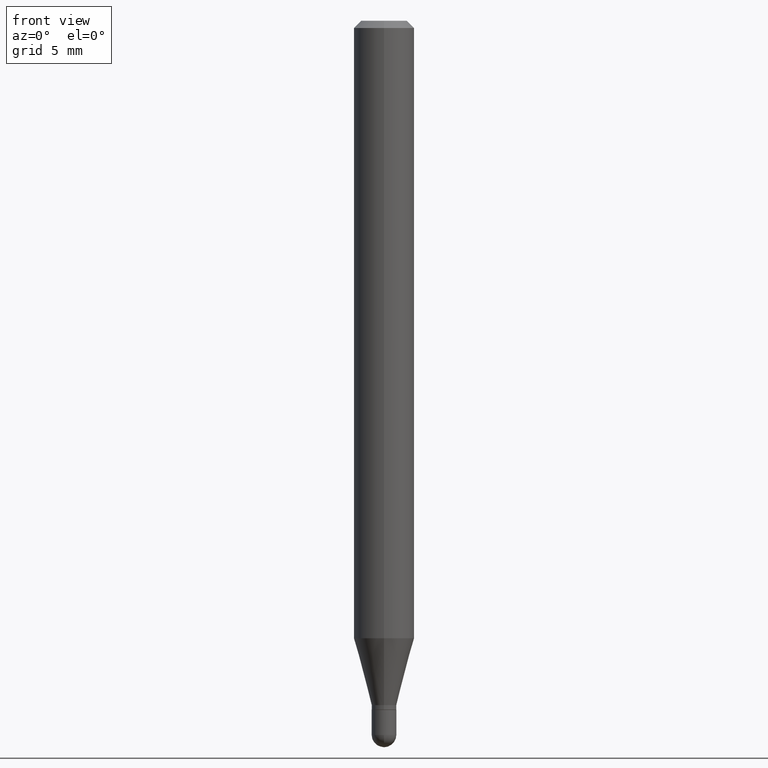
[diagram: clean part render]
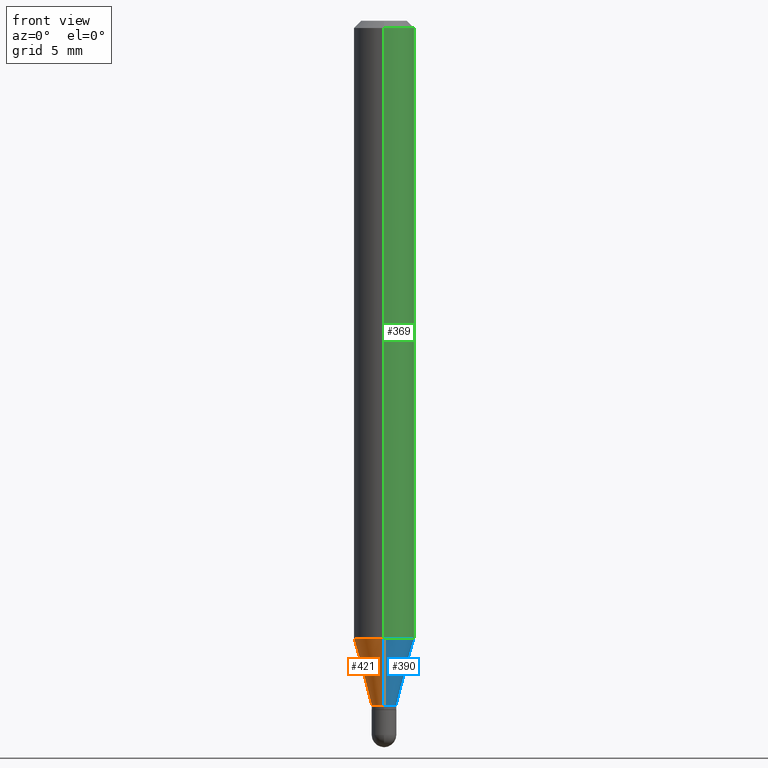
[diagram: same view with three faces highlighted in distinct colors, each labeled with its STEP entity id]
A machine part, front view with three faces highlighted in distinct colors.
Their STEP definitions:

[orange] entity #421 — the highlighted conical surface has half-angle 15 deg.
#6 = FACE_OUTER_BOUND ( 'NONE', #74, .T. ) ;
#9 = DIRECTION ( 'NONE',  ( 1.839019923739603865E-15, 0.2588190451025254579, 0.9659258262890669799 ) ) ;
#28 = AXIS2_PLACEMENT_3D ( 'NONE', #385, #319, #425 ) ;
#40 = VERTEX_POINT ( 'NONE', #435 ) ;
#43 = EDGE_CURVE ( 'NONE', #40, #470, #343, .T. ) ;
#60 = CARTESIAN_POINT ( 'NONE',  ( -1.780655482809647185E-16, -0.02550000000000486253, -1.413000000000000256 ) ) ;
#74 = EDGE_LOOP ( 'NONE', ( #303, #376, #442, #509 ) ) ;
#84 = LINE ( 'NONE', #314, #267 ) ;
#85 = DIRECTION ( 'NONE',  ( -2.445462518212453604E-29, 3.491490343577917092E-15, 1.000000000000000000 ) ) ;
#97 = LINE ( 'NONE', #60, #142 ) ;
#142 = VECTOR ( 'NONE', #250, 39.37007874015748854 ) ;
#152 = VERTEX_POINT ( 'NONE', #443 ) ;
#154 = AXIS2_PLACEMENT_3D ( 'NONE', #434, #85, #242 ) ;
#156 = EDGE_CURVE ( 'NONE', #152, #470, #97, .T. ) ;
#167 = CARTESIAN_POINT ( 'NONE',  ( 3.455438538234196718E-29, -4.933475855475596949E-15, -1.413000000000000256 ) ) ;
#173 = AXIS2_PLACEMENT_3D ( 'NONE', #167, #482, #282 ) ;
#204 = EDGE_CURVE ( 'NONE', #419, #40, #84, .T. ) ;
#207 = EDGE_CURVE ( 'NONE', #419, #152, #331, .T. ) ;
#242 = DIRECTION ( 'NONE',  ( -6.982962677686266711E-15, -1.000000000000000000, 0.000000000000000000 ) ) ;
#247 = CARTESIAN_POINT ( 'NONE',  ( 3.126388037344767028E-16, 0.02549999999999499195, -1.413000000000000256 ) ) ;
#250 = DIRECTION ( 'NONE',  ( -1.807323732225333689E-15, -0.2588190451025186856, 0.9659258262890687563 ) ) ;
#262 = CONICAL_SURFACE ( 'NONE', #154, 0.02549999999999992550, 0.2617993877991508511 ) ;
#267 = VECTOR ( 'NONE', #9, 39.37007874015748854 ) ;
#282 = DIRECTION ( 'NONE',  ( -6.982962677686266711E-15, -1.000000000000000000, 0.000000000000000000 ) ) ;
#303 = ORIENTED_EDGE ( 'NONE', *, *, #204, .F. ) ;
#314 = CARTESIAN_POINT ( 'NONE',  ( 1.811883976188595554E-16, 0.02549999999999499195, -1.413000000000000256 ) ) ;
#319 = DIRECTION ( 'NONE',  ( -2.445462518212453604E-29, 3.491490343577917092E-15, 1.000000000000000000 ) ) ;
#331 = CIRCLE ( 'NONE', #173, 0.02549999999999992550 ) ;
#343 = CIRCLE ( 'NONE', #28, 0.06250000000000000000 ) ;
#376 = ORIENTED_EDGE ( 'NONE', *, *, #207, .T. ) ;
#377 = CARTESIAN_POINT ( 'NONE',  ( -4.364351673553606080E-16, -0.06250000000000446865, -1.274914120119952088 ) ) ;
#385 = CARTESIAN_POINT ( 'NONE',  ( 3.117754694693152859E-29, -4.451350339289950225E-15, -1.274914120119952310 ) ) ;
#419 = VERTEX_POINT ( 'NONE', #247 ) ;
#421 = ADVANCED_FACE ( 'NONE', ( #6 ), #262, .T. ) ;
#425 = DIRECTION ( 'NONE',  ( -6.982962677686265922E-15, -1.000000000000000000, 4.370956789862821150E-15 ) ) ;
#434 = CARTESIAN_POINT ( 'NONE',  ( 3.455438538234196718E-29, -4.933475855475596949E-15, -1.413000000000000256 ) ) ;
#435 = CARTESIAN_POINT ( 'NONE',  ( 4.440892098500934804E-16, 0.06249999999999551747, -1.274914120119952532 ) ) ;
#442 = ORIENTED_EDGE ( 'NONE', *, *, #156, .T. ) ;
#443 = CARTESIAN_POINT ( 'NONE',  ( -1.780655482809647185E-16, -0.02550000000000486253, -1.413000000000000256 ) ) ;
#470 = VERTEX_POINT ( 'NONE', #377 ) ;
#482 = DIRECTION ( 'NONE',  ( -2.445462518212453604E-29, 3.491490343577917092E-15, 1.000000000000000000 ) ) ;
#509 = ORIENTED_EDGE ( 'NONE', *, *, #43, .F. ) ;

[blue] entity #390 — the highlighted conical surface has half-angle 15 deg.
#9 = DIRECTION ( 'NONE',  ( 1.839019923739603865E-15, 0.2588190451025254579, 0.9659258262890669799 ) ) ;
#13 = DIRECTION ( 'NONE',  ( -2.445462518212453604E-29, 3.491490343577917092E-15, 1.000000000000000000 ) ) ;
#40 = VERTEX_POINT ( 'NONE', #435 ) ;
#53 = AXIS2_PLACEMENT_3D ( 'NONE', #399, #404, #363 ) ;
#60 = CARTESIAN_POINT ( 'NONE',  ( -1.780655482809647185E-16, -0.02550000000000486253, -1.413000000000000256 ) ) ;
#77 = CONICAL_SURFACE ( 'NONE', #53, 0.02549999999999992550, 0.2617993877991508511 ) ;
#84 = LINE ( 'NONE', #314, #267 ) ;
#90 = CIRCLE ( 'NONE', #423, 0.06250000000000000000 ) ;
#97 = LINE ( 'NONE', #60, #142 ) ;
#113 = ORIENTED_EDGE ( 'NONE', *, *, #398, .F. ) ;
#116 = ORIENTED_EDGE ( 'NONE', *, *, #507, .T. ) ;
#136 = FACE_OUTER_BOUND ( 'NONE', #329, .T. ) ;
#142 = VECTOR ( 'NONE', #250, 39.37007874015748854 ) ;
#147 = ORIENTED_EDGE ( 'NONE', *, *, #156, .F. ) ;
#152 = VERTEX_POINT ( 'NONE', #443 ) ;
#156 = EDGE_CURVE ( 'NONE', #152, #470, #97, .T. ) ;
#164 = DIRECTION ( 'NONE',  ( -6.982962677686266711E-15, -1.000000000000000000, 0.000000000000000000 ) ) ;
#175 = CARTESIAN_POINT ( 'NONE',  ( 3.455438538234196718E-29, -4.933475855475596949E-15, -1.413000000000000256 ) ) ;
#204 = EDGE_CURVE ( 'NONE', #419, #40, #84, .T. ) ;
#215 = CIRCLE ( 'NONE', #440, 0.02549999999999992550 ) ;
#222 = DIRECTION ( 'NONE',  ( -2.445462518212453604E-29, 3.491490343577917092E-15, 1.000000000000000000 ) ) ;
#247 = CARTESIAN_POINT ( 'NONE',  ( 3.126388037344767028E-16, 0.02549999999999499195, -1.413000000000000256 ) ) ;
#250 = DIRECTION ( 'NONE',  ( -1.807323732225333689E-15, -0.2588190451025186856, 0.9659258262890687563 ) ) ;
#267 = VECTOR ( 'NONE', #9, 39.37007874015748854 ) ;
#314 = CARTESIAN_POINT ( 'NONE',  ( 1.811883976188595554E-16, 0.02549999999999499195, -1.413000000000000256 ) ) ;
#326 = CARTESIAN_POINT ( 'NONE',  ( 3.117754694693152859E-29, -4.451350339289950225E-15, -1.274914120119952310 ) ) ;
#329 = EDGE_LOOP ( 'NONE', ( #116, #341, #113, #147 ) ) ;
#341 = ORIENTED_EDGE ( 'NONE', *, *, #204, .T. ) ;
#363 = DIRECTION ( 'NONE',  ( -6.982962677686266711E-15, -1.000000000000000000, 0.000000000000000000 ) ) ;
#377 = CARTESIAN_POINT ( 'NONE',  ( -4.364351673553606080E-16, -0.06250000000000446865, -1.274914120119952088 ) ) ;
#390 = ADVANCED_FACE ( 'NONE', ( #136 ), #77, .T. ) ;
#398 = EDGE_CURVE ( 'NONE', #470, #40, #90, .T. ) ;
#399 = CARTESIAN_POINT ( 'NONE',  ( 3.455438538234196718E-29, -4.933475855475596949E-15, -1.413000000000000256 ) ) ;
#404 = DIRECTION ( 'NONE',  ( -2.445462518212453604E-29, 3.491490343577917092E-15, 1.000000000000000000 ) ) ;
#419 = VERTEX_POINT ( 'NONE', #247 ) ;
#423 = AXIS2_PLACEMENT_3D ( 'NONE', #326, #13, #490 ) ;
#435 = CARTESIAN_POINT ( 'NONE',  ( 4.440892098500934804E-16, 0.06249999999999551747, -1.274914120119952532 ) ) ;
#440 = AXIS2_PLACEMENT_3D ( 'NONE', #175, #222, #164 ) ;
#443 = CARTESIAN_POINT ( 'NONE',  ( -1.780655482809647185E-16, -0.02550000000000486253, -1.413000000000000256 ) ) ;
#470 = VERTEX_POINT ( 'NONE', #377 ) ;
#490 = DIRECTION ( 'NONE',  ( -6.982962677686265922E-15, -1.000000000000000000, 4.370956789862821150E-15 ) ) ;
#507 = EDGE_CURVE ( 'NONE', #152, #419, #215, .T. ) ;

[green] entity #369 — the highlighted cylindrical surface (edge-blend (fillet) strip) has radius 1.5875 mm, axis along (-0, 0, 1).
#13 = DIRECTION ( 'NONE',  ( -2.445462518212453604E-29, 3.491490343577917092E-15, 1.000000000000000000 ) ) ;
#15 = ORIENTED_EDGE ( 'NONE', *, *, #50, .F. ) ;
#40 = VERTEX_POINT ( 'NONE', #435 ) ;
#50 = EDGE_CURVE ( 'NONE', #313, #498, #284, .T. ) ;
#90 = CIRCLE ( 'NONE', #423, 0.06250000000000000000 ) ;
#91 = DIRECTION ( 'NONE',  ( -2.445462518212453604E-29, 3.491490343577917092E-15, 1.000000000000000000 ) ) ;
#92 = CARTESIAN_POINT ( 'NONE',  ( 4.440892098500939734E-16, 0.06249999999999995143, -0.01500000000000054588 ) ) ;
#126 = VECTOR ( 'NONE', #447, 39.37007874015748143 ) ;
#134 = DIRECTION ( 'NONE',  ( -2.445462518212453604E-29, 3.491490343577917092E-15, 1.000000000000000000 ) ) ;
#155 = EDGE_LOOP ( 'NONE', ( #274, #272, #15, #428 ) ) ;
#163 = DIRECTION ( 'NONE',  ( -2.445462518212453604E-29, 3.491490343577917092E-15, 1.000000000000000000 ) ) ;
#170 = CARTESIAN_POINT ( 'NONE',  ( 0.000000000000000000, 0.000000000000000000, 0.000000000000000000 ) ) ;
#220 = FACE_OUTER_BOUND ( 'NONE', #155, .T. ) ;
#272 = ORIENTED_EDGE ( 'NONE', *, *, #391, .T. ) ;
#274 = ORIENTED_EDGE ( 'NONE', *, *, #398, .T. ) ;
#277 = AXIS2_PLACEMENT_3D ( 'NONE', #427, #163, #317 ) ;
#284 = CIRCLE ( 'NONE', #277, 0.06250000000000000000 ) ;
#288 = LINE ( 'NONE', #397, #126 ) ;
#313 = VERTEX_POINT ( 'NONE', #381 ) ;
#317 = DIRECTION ( 'NONE',  ( -6.982962677686265922E-15, -1.000000000000000000, 3.483106191921935554E-15 ) ) ;
#320 = VECTOR ( 'NONE', #91, 39.37007874015748143 ) ;
#326 = CARTESIAN_POINT ( 'NONE',  ( 3.117754694693152859E-29, -4.451350339289950225E-15, -1.274914120119952310 ) ) ;
#359 = LINE ( 'NONE', #393, #320 ) ;
#367 = DIRECTION ( 'NONE',  ( -6.982962677686265922E-15, -1.000000000000000000, 3.491490343577917092E-15 ) ) ;
#369 = ADVANCED_FACE ( 'NONE', ( #220 ), #408, .T. ) ;
#377 = CARTESIAN_POINT ( 'NONE',  ( -4.364351673553606080E-16, -0.06250000000000446865, -1.274914120119952088 ) ) ;
#381 = CARTESIAN_POINT ( 'NONE',  ( -4.364351673553912750E-16, -0.06250000000000005551, -0.01500000000000011047 ) ) ;
#388 = AXIS2_PLACEMENT_3D ( 'NONE', #170, #134, #367 ) ;
#391 = EDGE_CURVE ( 'NONE', #40, #498, #359, .T. ) ;
#393 = CARTESIAN_POINT ( 'NONE',  ( 4.440892098500625669E-16, 0.06250000000000000000, -2.182181464736198183E-16 ) ) ;
#397 = CARTESIAN_POINT ( 'NONE',  ( -4.364351673553916201E-16, -0.06250000000000000000, 2.182181464736198183E-16 ) ) ;
#398 = EDGE_CURVE ( 'NONE', #470, #40, #90, .T. ) ;
#408 = CYLINDRICAL_SURFACE ( 'NONE', #388, 0.06250000000000000000 ) ;
#413 = EDGE_CURVE ( 'NONE', #470, #313, #288, .T. ) ;
#423 = AXIS2_PLACEMENT_3D ( 'NONE', #326, #13, #490 ) ;
#427 = CARTESIAN_POINT ( 'NONE',  ( 3.668193777318761015E-31, -5.237235515366990319E-17, -0.01500000000000032904 ) ) ;
#428 = ORIENTED_EDGE ( 'NONE', *, *, #413, .F. ) ;
#435 = CARTESIAN_POINT ( 'NONE',  ( 4.440892098500934804E-16, 0.06249999999999551747, -1.274914120119952532 ) ) ;
#447 = DIRECTION ( 'NONE',  ( -2.445462518212453604E-29, 3.491490343577917092E-15, 1.000000000000000000 ) ) ;
#470 = VERTEX_POINT ( 'NONE', #377 ) ;
#490 = DIRECTION ( 'NONE',  ( -6.982962677686265922E-15, -1.000000000000000000, 4.370956789862821150E-15 ) ) ;
#498 = VERTEX_POINT ( 'NONE', #92 ) ;